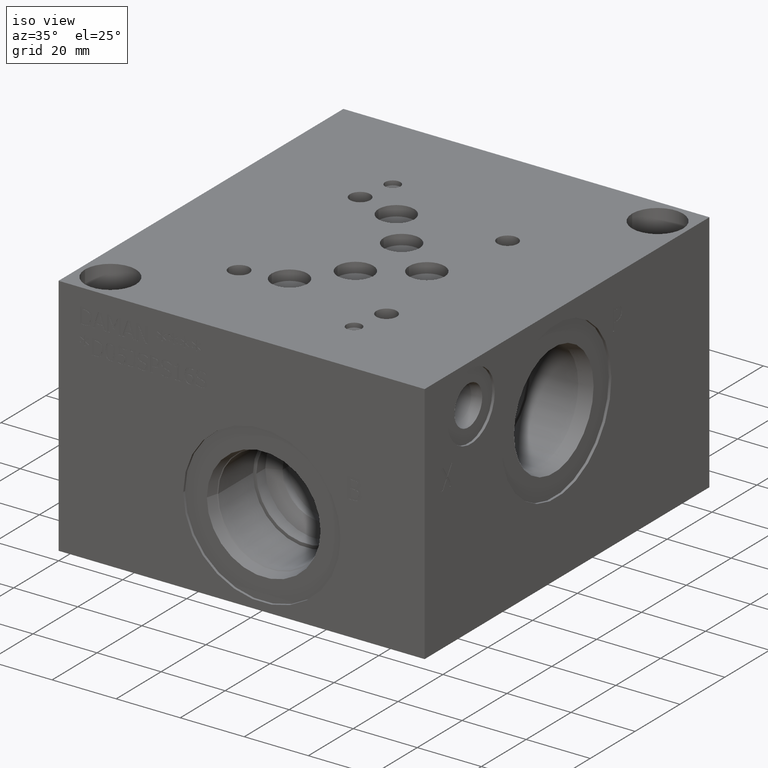
[diagram: clean part render]
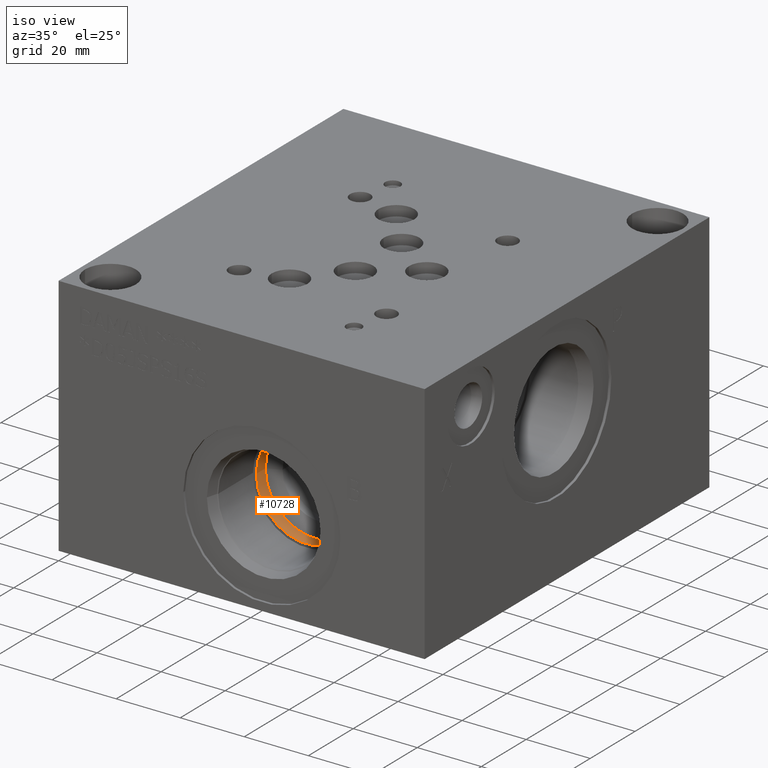
[diagram: same view with one face highlighted and labeled with its STEP entity id]
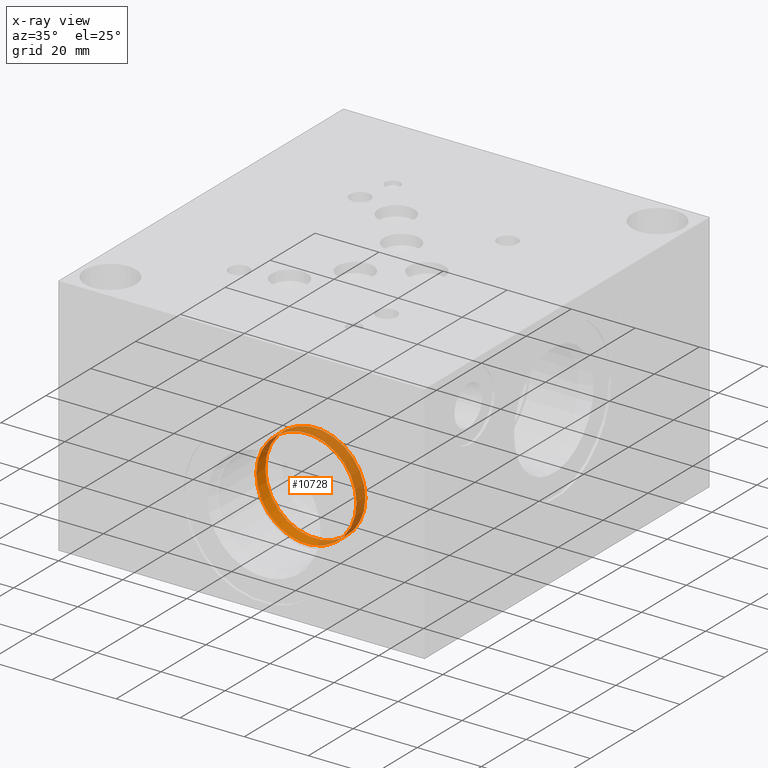
[diagram: x-ray of the same camera — body ghosted, the highlighted face saturated]
A machine part, iso view. The second image highlights one B-rep face of the part: STEP entity #10728.
The next image is the same camera in x-ray: the body ghosted, the highlighted face saturated — about 57% of this face is hidden behind the body in this view.
In plain terms, the highlighted cylindrical surface (bore or boss wall) has radius 15.6337 mm, axis along (0, -1, 0).
Its self-contained STEP definition (entity closure, byte-faithful):
#46=CYLINDRICAL_SURFACE('',#11270,15.6337);
#224=CIRCLE('',#11262,15.6337);
#225=CIRCLE('',#11263,15.6337);
#228=CIRCLE('',#11267,15.6337);
#1320=FACE_OUTER_BOUND('',#1926,.T.);
#1926=EDGE_LOOP('',(#9221,#9222,#9223,#9224,#9225));
#2968=LINE('',#18289,#3975);
#3975=VECTOR('',#13328,15.6337);
#4928=VERTEX_POINT('',#18272);
#4929=VERTEX_POINT('',#18273);
#4932=VERTEX_POINT('',#18282);
#6389=EDGE_CURVE('',#4928,#4929,#224,.T.);
#6391=EDGE_CURVE('',#4929,#4928,#225,.T.);
#6394=EDGE_CURVE('',#4932,#4932,#228,.T.);
#6397=EDGE_CURVE('',#4932,#4929,#2968,.T.);
#9221=ORIENTED_EDGE('',*,*,#6394,.T.);
#9222=ORIENTED_EDGE('',*,*,#6397,.T.);
#9223=ORIENTED_EDGE('',*,*,#6389,.F.);
#9224=ORIENTED_EDGE('',*,*,#6391,.F.);
#9225=ORIENTED_EDGE('',*,*,#6397,.F.);
#10728=ADVANCED_FACE('',(#1320),#46,.F.);
#11262=AXIS2_PLACEMENT_3D('',#18274,#13308,#13309);
#11263=AXIS2_PLACEMENT_3D('',#18276,#13311,#13312);
#11267=AXIS2_PLACEMENT_3D('',#18283,#13319,#13320);
#11270=AXIS2_PLACEMENT_3D('',#18288,#13326,#13327);
#13308=DIRECTION('center_axis',(0.,-1.,0.));
#13309=DIRECTION('ref_axis',(1.,0.,0.));
#13311=DIRECTION('center_axis',(0.,-1.,0.));
#13312=DIRECTION('ref_axis',(1.,0.,0.));
#13319=DIRECTION('center_axis',(0.,-1.,0.));
#13320=DIRECTION('ref_axis',(1.,0.,0.));
#13326=DIRECTION('center_axis',(0.,-1.,0.));
#13327=DIRECTION('ref_axis',(1.,0.,0.));
#13328=DIRECTION('',(0.,1.,0.));
#18272=CARTESIAN_POINT('',(79.1337,23.7998,26.9748));
#18273=CARTESIAN_POINT('',(47.8663,23.7998,26.9748));
#18274=CARTESIAN_POINT('Origin',(63.5,23.7998,26.9748));
#18276=CARTESIAN_POINT('Origin',(63.5,23.7998,26.9748));
#18282=CARTESIAN_POINT('',(47.8663,19.8374,26.9748));
#18283=CARTESIAN_POINT('Origin',(63.5,19.8374,26.9748));
#18288=CARTESIAN_POINT('Origin',(63.5,11.8999,26.9748));
#18289=CARTESIAN_POINT('',(47.8663,11.8999,26.9748));